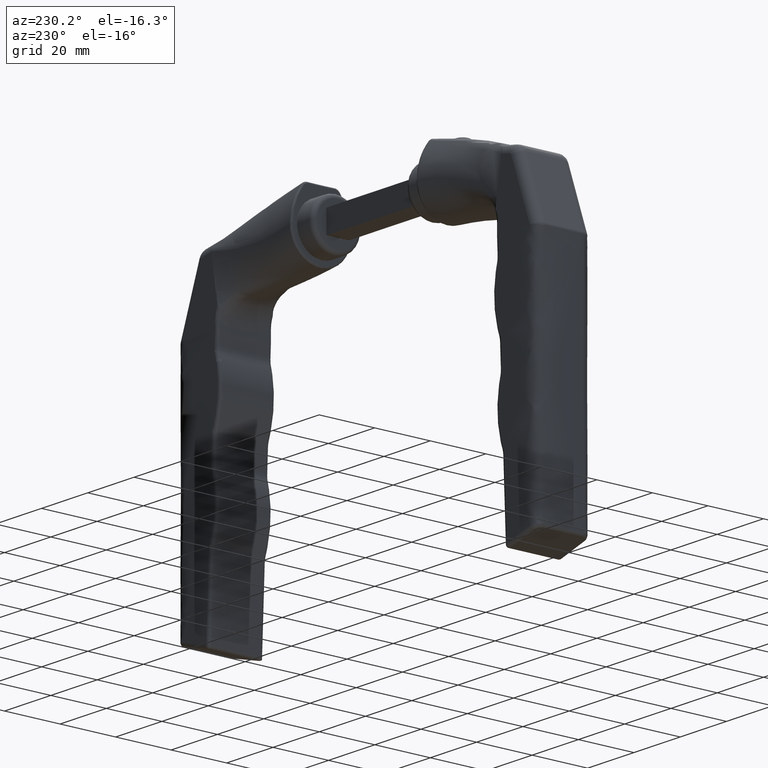
[diagram: clean part render]
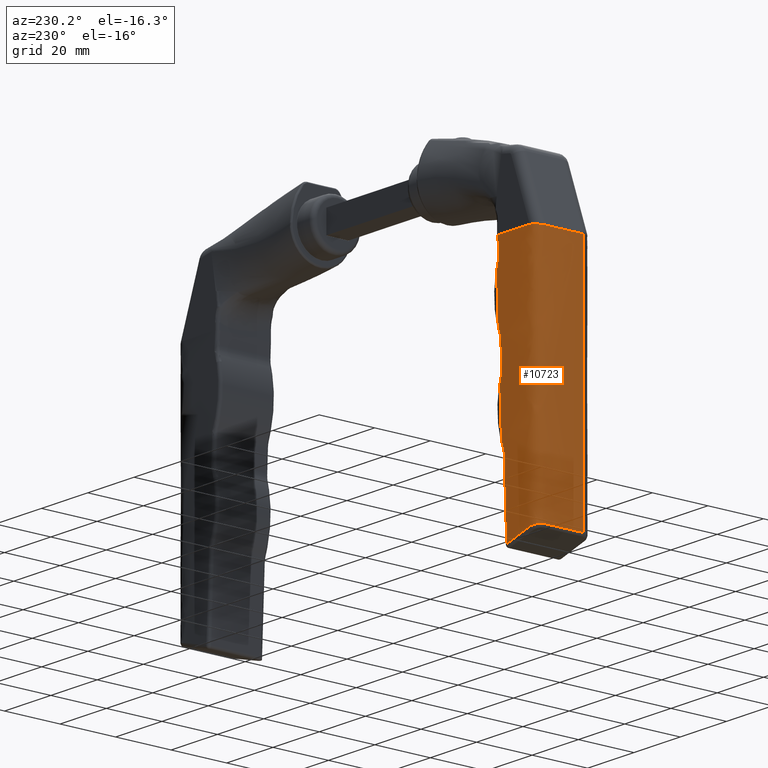
[diagram: same view with one face highlighted and labeled with its STEP entity id]
A machine part, auxiliary view. The second image highlights one B-rep face of the part: STEP entity #10723.
In plain terms, the highlighted face is a freeform B-spline surface patch.
Its self-contained STEP definition (entity closure, byte-faithful):
#275 = CARTESIAN_POINT ( 'NONE',  ( -110.5375847758303962, -9.900000000000051870, -47.04482039995603770 ) ) ;
#323 = EDGE_CURVE ( 'NONE', #3808, #2482, #6611, .T. ) ;
#343 = CARTESIAN_POINT ( 'NONE',  ( -110.1206761756391472, -9.826618143381764980, -48.75416021638946518 ) ) ;
#387 = DIRECTION ( 'NONE',  ( -0.9991023873423596768, 0.000000000000000000, -0.04236059025553733093 ) ) ;
#389 = B_SPLINE_SURFACE_WITH_KNOTS ( 'NONE', 3, 1, ( 
 ( #7105, #14452 ),
 ( #7151, #8337 ),
 ( #8277, #15587 ),
 ( #3491, #12021 ),
 ( #1141, #8395 ),
 ( #1088, #14286 ),
 ( #9579, #1035 ),
 ( #8225, #5847 ),
 ( #13161, #10743 ),
 ( #9423, #3536 ),
 ( #12074, #4771 ),
 ( #14503, #8448 ),
 ( #7054, #2145 ),
 ( #10630, #3374 ),
 ( #15525, #985 ),
 ( #9477, #2198 ),
 ( #3435, #11964 ) ),
 .UNSPECIFIED., .F., .F., .F.,
 ( 4, 1, 1, 1, 2, 1, 1, 1, 2, 1, 1, 1, 4 ),
 ( 2, 2 ),
 ( 0.000000000000000000, 0.1016543106499572663, 0.2033086212999145326, 0.3049629319498717850, 0.4066172425998290652, 0.4448072733632542075, 0.4829973041266792388, 0.5211873348901043812, 0.5593773656535294680, 0.6695330242401470455, 0.7796886828267647340, 0.8898443414133825335, 1.000000000000000000 ),
 ( 0.000000000000000000, 1.000000000000000000 ),
 .UNSPECIFIED. ) ;
#400 = CARTESIAN_POINT ( 'NONE',  ( -109.7177995408222415, -7.789652459436074317, -50.87106400424470820 ) ) ;
#499 = FACE_OUTER_BOUND ( 'NONE', #12058, .T. ) ;
#501 = CARTESIAN_POINT ( 'NONE',  ( -109.7298328815726052, -7.974447450912835578, -50.80721475684600819 ) ) ;
#521 = B_SPLINE_CURVE_WITH_KNOTS ( 'NONE', 3,
 ( #13155, #15581, #10909, #1080 ),
 .UNSPECIFIED., .F., .F.,
 ( 4, 4 ),
 ( 0.000000000000000000, 0.003407895719440078887 ),
 .UNSPECIFIED. ) ;
#586 = ORIENTED_EDGE ( 'NONE', *, *, #12293, .T. ) ;
#742 = B_SPLINE_CURVE_WITH_KNOTS ( 'NONE', 3,
 ( #5198, #1552, #1355, #8655, #6358, #12466, #11079, #2673, #6309, #2624, #5033, #12378, #11179, #13543, #13592, #13641, #3911, #14747 ),
 .UNSPECIFIED., .F., .F.,
 ( 4, 2, 2, 2, 2, 2, 2, 2, 4 ),
 ( -5.999999998749629279E-08, 0.0003029937331418587360, 0.0006060474662837049727, 0.001212154932567395278, 0.002424369865134788898, 0.003030477331418495249, 0.003636584797702201166, 0.004242692263985907083, 0.004848799730269613001 ),
 .UNSPECIFIED. ) ;
#783 = VECTOR ( 'NONE', #387, 1000.000000000000114 ) ;
#813 = CARTESIAN_POINT ( 'NONE',  ( -23.60204615867909794, 3.296402247660026319, -51.00000000000002842 ) ) ;
#836 = CARTESIAN_POINT ( 'NONE',  ( -113.1374330987865875, -9.900000000000048317, -37.94535126960929716 ) ) ;
#944 = CARTESIAN_POINT ( 'NONE',  ( -112.1379493848213258, -9.900000000000048317, -41.44354426848774864 ) ) ;
#971 = VECTOR ( 'NONE', #1627, 1000.000000000000000 ) ;
#985 = CARTESIAN_POINT ( 'NONE',  ( -23.24939219726218198, 3.295195981485862458, -51.00000000000002842 ) ) ;
#1035 = CARTESIAN_POINT ( 'NONE',  ( -23.24939219726221040, -9.900000000000050093, -48.25212406856840630 ) ) ;
#1056 = CARTESIAN_POINT ( 'NONE',  ( -110.2671978388802501, -9.900000000000051870, -47.99117467928152792 ) ) ;
#1080 = CARTESIAN_POINT ( 'NONE',  ( -66.52883967307947444, -9.900000000000050093, -34.96831151254765757 ) ) ;
#1084 = VECTOR ( 'NONE', #9270, 1000.000000000000114 ) ;
#1088 = CARTESIAN_POINT ( 'NONE',  ( -114.4475491600007757, -9.900000000000050093, -47.04820837801869260 ) ) ;
#1141 = CARTESIAN_POINT ( 'NONE',  ( -114.4475491600008894, -9.900000000000048317, -45.21886523665086344 ) ) ;
#1186 = CARTESIAN_POINT ( 'NONE',  ( -84.83032674674937823, -9.900000000000053646, -36.35554430320302544 ) ) ;
#1289 = CARTESIAN_POINT ( 'NONE',  ( -53.09895704642706704, -9.900000000000050093, -34.39890264881662318 ) ) ;
#1295 = VERTEX_POINT ( 'NONE', #5214 ) ;
#1355 = CARTESIAN_POINT ( 'NONE',  ( -23.60136728808289064, -7.104047871814411330, -50.99437887827696869 ) ) ;
#1460 = VERTEX_POINT ( 'NONE', #10252 ) ;
#1519 = CARTESIAN_POINT ( 'NONE',  ( -49.66907441977465254, -9.900000000000050093, -34.25348026327043272 ) ) ;
#1552 = CARTESIAN_POINT ( 'NONE',  ( -23.60204610286707450, -7.001018803402014434, -51.00000000000000000 ) ) ;
#1617 = CARTESIAN_POINT ( 'NONE',  ( -109.6954364955716557, -7.224422660485736003, -50.98840052303821579 ) ) ;
#1627 = DIRECTION ( 'NONE',  ( 1.941853346959463414E-16, 0.000000000000000000, 1.000000000000000000 ) ) ;
#1657 = CARTESIAN_POINT ( 'NONE',  ( -88.07693019043864524, -9.900000000000051870, -36.88281983264403152 ) ) ;
#1840 = B_SPLINE_CURVE_WITH_KNOTS ( 'NONE', 3,
 ( #14111, #3194, #813, #9307, #14268, #2020, #3257 ),
 .UNSPECIFIED., .F., .F.,
 ( 4, 1, 1, 1, 4 ),
 ( 7.806255641895561051E-18, 0.003450000223087217478, 0.006900000446174437557, 0.01035000066926165460, 0.01380000089234886644 ),
 .UNSPECIFIED. ) ;
#1963 = EDGE_CURVE ( 'NONE', #6618, #14991, #12732, .T. ) ;
#2020 = CARTESIAN_POINT ( 'NONE',  ( -23.60204615867913347, -5.745059925753540853, -51.00000000000001421 ) ) ;
#2033 = CARTESIAN_POINT ( 'NONE',  ( -109.6932477472464171, 6.900000000000049205, -50.99999999999999289 ) ) ;
#2145 = CARTESIAN_POINT ( 'NONE',  ( -23.24939219726218198, -3.478915452503912764, -50.99999999999999289 ) ) ;
#2198 = CARTESIAN_POINT ( 'NONE',  ( -23.24939219726221040, 5.665958219195332823, -51.00000000000000711 ) ) ;
#2482 = VERTEX_POINT ( 'NONE', #9131 ) ;
#2501 = ORIENTED_EDGE ( 'NONE', *, *, #5000, .T. ) ;
#2624 = CARTESIAN_POINT ( 'NONE',  ( -23.48147852206047403, -9.190655074178501138, -49.87967267683565353 ) ) ;
#2673 = CARTESIAN_POINT ( 'NONE',  ( -23.55795623615291845, -8.450675186923884752, -50.57390976704785857 ) ) ;
#2890 = CARTESIAN_POINT ( 'NONE',  ( -97.16218622107157898, -9.900000000000051870, -37.26802240342761507 ) ) ;
#2951 = CARTESIAN_POINT ( 'NONE',  ( -109.8208265937353616, -8.797871677128620505, -50.32891890929804646 ) ) ;
#3102 = CARTESIAN_POINT ( 'NONE',  ( -109.6932477472464456, -6.355156734214756575, -50.99999999999997868 ) ) ;
#3125 = CARTESIAN_POINT ( 'NONE',  ( -23.60204615867922939, -6.900000000000059863, -51.00000000000000711 ) ) ;
#3194 = CARTESIAN_POINT ( 'NONE',  ( -23.60204615867912636, 5.666573960363149531, -51.00000000000000711 ) ) ;
#3196 = EDGE_CURVE ( 'NONE', #1295, #12546, #4672, .T. ) ;
#3257 = CARTESIAN_POINT ( 'NONE',  ( -23.60204615867922939, -6.900000000000059863, -51.00000000000000711 ) ) ;
#3282 = CARTESIAN_POINT ( 'NONE',  ( -49.66907441977465254, -9.900000000000050093, -34.25348026327043272 ) ) ;
#3374 = CARTESIAN_POINT ( 'NONE',  ( -23.24939219726225303, -0.1161706104272915846, -50.99999999999999289 ) ) ;
#3435 = CARTESIAN_POINT ( 'NONE',  ( -114.4475491600007757, 6.900000000000049205, -50.99999999999999289 ) ) ;
#3450 = CARTESIAN_POINT ( 'NONE',  ( -111.4053597104283426, -9.900000000000051870, -44.00760812886327500 ) ) ;
#3491 = CARTESIAN_POINT ( 'NONE',  ( -114.4475491600006052, -9.900000000000044764, -42.55575537007972997 ) ) ;
#3519 = CARTESIAN_POINT ( 'NONE',  ( -25.24759697194702568, -9.900000000000050093, -34.21894106084287301 ) ) ;
#3536 = CARTESIAN_POINT ( 'NONE',  ( -23.24939219726215001, -8.087800873490685660, -50.82787654899865970 ) ) ;
#3658 = ORIENTED_EDGE ( 'NONE', *, *, #5842, .T. ) ;
#3678 = ORIENTED_EDGE ( 'NONE', *, *, #4032, .T. ) ;
#3700 = CARTESIAN_POINT ( 'NONE',  ( -110.4023995156254330, -9.900000000000051870, -47.51796881067323852 ) ) ;
#3798 = B_SPLINE_CURVE_WITH_KNOTS ( 'NONE', 3,
 ( #10135, #6476, #343, #11469, #14953, #7696, #2951, #7845, #7795, #501, #400, #8912, #1617, #5374, #13859, #12784, #3102, #14002, #11796, #7893, #5516, #2033 ),
 .UNSPECIFIED., .F., .F.,
 ( 4, 2, 2, 2, 2, 2, 2, 2, 1, 1, 1, 1, 4 ),
 ( -5.999999993201480095E-08, 0.001160413388656946149, 0.002320886777313824288, 0.002901123471642266284, 0.003481360165970708714, 0.004061596860299151145, 0.004641833554627593575, 0.004931951901791813489, 0.005222070248956034270, 0.005802306943284474099, 0.006962780331941358092, 0.009283727109255122609, 0.01856751421851017547 ),
 .UNSPECIFIED. ) ;
#3808 = VERTEX_POINT ( 'NONE', #8628 ) ;
#3868 = CARTESIAN_POINT ( 'NONE',  ( -83.75801937480308368, -9.900000000131422340, -35.97607947098462233 ) ) ;
#3911 = CARTESIAN_POINT ( 'NONE',  ( -23.27505316389638068, -9.900000000000057199, -48.00786822846576030 ) ) ;
#3925 = CARTESIAN_POINT ( 'NONE',  ( -110.6727700360353168, -9.900000000000051870, -46.57167198923880846 ) ) ;
#4032 = EDGE_CURVE ( 'NONE', #10955, #4095, #3798, .T. ) ;
#4095 = VERTEX_POINT ( 'NONE', #9116 ) ;
#4102 = CARTESIAN_POINT ( 'NONE',  ( -110.2672142554205124, -9.900000000000051870, -47.99111722139046066 ) ) ;
#4108 = CARTESIAN_POINT ( 'NONE',  ( -113.1374330987865875, -9.900000000000048317, -37.94535126960929716 ) ) ;
#4111 = EDGE_CURVE ( 'NONE', #12931, #1295, #9673, .T. ) ;
#4136 = DIRECTION ( 'NONE',  ( -1.000000000000000000, 5.706442543632500772E-17, 7.608590058176622501E-17 ) ) ;
#4369 = ORIENTED_EDGE ( 'NONE', *, *, #4648, .T. ) ;
#4392 = CARTESIAN_POINT ( 'NONE',  ( -113.0484684189291471, -9.900000000000048317, -38.25672764911022483 ) ) ;
#4405 = CARTESIAN_POINT ( 'NONE',  ( -23.24939219726221040, -9.900000000000050093, -47.80746668257226872 ) ) ;
#4567 = ORIENTED_EDGE ( 'NONE', *, *, #3196, .T. ) ;
#4648 = EDGE_CURVE ( 'NONE', #5396, #13561, #1840, .T. ) ;
#4672 = LINE ( 'NONE', #1289, #783 ) ;
#4721 = CARTESIAN_POINT ( 'NONE',  ( -59.78157360593273495, -9.900000000000051870, -35.68313497391904576 ) ) ;
#4771 = CARTESIAN_POINT ( 'NONE',  ( -23.24939219726221040, -7.300421756574583476, -51.00000000000000711 ) ) ;
#4915 = CARTESIAN_POINT ( 'NONE',  ( -23.24939219726220685, -9.900000000000050093, -34.13421988033179844 ) ) ;
#4945 = CARTESIAN_POINT ( 'NONE',  ( -56.33161930641043114, -9.900000000000050093, -35.53686157658371769 ) ) ;
#4968 = CARTESIAN_POINT ( 'NONE',  ( -26.90890728311631008, -9.900000000000050093, -34.28937837164336599 ) ) ;
#5000 = EDGE_CURVE ( 'NONE', #9469, #10681, #6136, .T. ) ;
#5033 = CARTESIAN_POINT ( 'NONE',  ( -23.46325970833784780, -9.312954747012534895, -49.71583867257253075 ) ) ;
#5038 = CARTESIAN_POINT ( 'NONE',  ( -82.66907441977470228, -9.900000000000050093, -35.65263564128049012 ) ) ;
#5121 = CARTESIAN_POINT ( 'NONE',  ( -23.60204615867921163, 6.900000000000043876, -50.99999999999999289 ) ) ;
#5198 = CARTESIAN_POINT ( 'NONE',  ( -23.60204615867922939, -6.900000000000059863, -51.00000000000000711 ) ) ;
#5213 = CARTESIAN_POINT ( 'NONE',  ( -52.88166500688814153, -9.900000000000046541, -35.39058817924841094 ) ) ;
#5214 = CARTESIAN_POINT ( 'NONE',  ( -33.52883967307928259, -9.900000000000050093, -33.56915613453760727 ) ) ;
#5374 = CARTESIAN_POINT ( 'NONE',  ( -109.6929919969666969, -6.935850150136045222, -51.00134797548898291 ) ) ;
#5396 = VERTEX_POINT ( 'NONE', #5121 ) ;
#5403 = CARTESIAN_POINT ( 'NONE',  ( -110.2671978388802501, -9.900000000000051870, -47.99117467928152792 ) ) ;
#5516 = CARTESIAN_POINT ( 'NONE',  ( -109.6932477472463745, 3.803904996387826198, -51.00000000000000711 ) ) ;
#5531 = CARTESIAN_POINT ( 'NONE',  ( -112.9595037390717778, -9.900000000000048317, -38.56810402861123066 ) ) ;
#5842 = EDGE_CURVE ( 'NONE', #13572, #3808, #521, .T. ) ;
#5847 = CARTESIAN_POINT ( 'NONE',  ( -23.24939219726210382, -9.727432708186322330, -49.09679476265323217 ) ) ;
#5909 = B_SPLINE_CURVE_WITH_KNOTS ( 'NONE', 3,
 ( #5038, #3868, #1186, #9690 ),
 .UNSPECIFIED., .F., .F.,
 ( 4, 4 ),
 ( -5.999999999723631142E-08, 0.003407835719427049735 ),
 .UNSPECIFIED. ) ;
#6007 = EDGE_CURVE ( 'NONE', #13561, #9469, #742, .T. ) ;
#6136 = LINE ( 'NONE', #10002, #971 ) ;
#6143 = CARTESIAN_POINT ( 'NONE',  ( -24.58152871371875037, -9.900000000000050093, -34.19070066733917912 ) ) ;
#6309 = CARTESIAN_POINT ( 'NONE',  ( -23.53025240189344203, -8.784097782544142419, -50.32633107086166291 ) ) ;
#6358 = CARTESIAN_POINT ( 'NONE',  ( -23.59713171333054760, -7.404943182562076842, -50.95614028934090811 ) ) ;
#6476 = CARTESIAN_POINT ( 'NONE',  ( -110.1947925001927757, -9.899996240792223290, -48.37116235276868537 ) ) ;
#6524 = CARTESIAN_POINT ( 'NONE',  ( -51.83032674674947771, -9.900000000000048317, -34.95638892519303198 ) ) ;
#6548 = CARTESIAN_POINT ( 'NONE',  ( -110.2672015673015551, -9.900000000000051870, -47.99115511229711473 ) ) ;
#6611 = LINE ( 'NONE', #12951, #1084 ) ;
#6618 = VERTEX_POINT ( 'NONE', #6743 ) ;
#6682 = CARTESIAN_POINT ( 'NONE',  ( -33.52883967307928259, -9.900000000000050093, -33.56915613453760727 ) ) ;
#6743 = CARTESIAN_POINT ( 'NONE',  ( -85.88166500688802785, -9.900000000000050093, -36.78974355725846124 ) ) ;
#6885 = CARTESIAN_POINT ( 'NONE',  ( -32.41642482019492633, -9.899999999967205255, -33.79926528502427630 ) ) ;
#7054 = CARTESIAN_POINT ( 'NONE',  ( -114.4475491600008752, -3.418371935848021348, -50.99999999999999289 ) ) ;
#7105 = CARTESIAN_POINT ( 'NONE',  ( -114.4475491600007757, -9.900000000000050093, -36.99999999999997868 ) ) ;
#7144 = B_SPLINE_CURVE_WITH_KNOTS ( 'NONE', 3,
 ( #4915, #13413, #6143, #3519, #4968, #7341, #8425 ),
 .UNSPECIFIED., .F., .F.,
 ( 4, 3, 4 ),
 ( 0.000000000000000000, 0.002000000000000003511, 0.006988408592201670287 ),
 .UNSPECIFIED. ) ;
#7151 = CARTESIAN_POINT ( 'NONE',  ( -114.4475491600007757, -9.900000000000048317, -37.99185876897320924 ) ) ;
#7341 = CARTESIAN_POINT ( 'NONE',  ( -28.57021759428557672, -9.900000000000051870, -34.35981568244380924 ) ) ;
#7395 = ORIENTED_EDGE ( 'NONE', *, *, #1963, .T. ) ;
#7696 = CARTESIAN_POINT ( 'NONE',  ( -109.8451959188923297, -8.944534718416814911, -50.20144306100810638 ) ) ;
#7795 = CARTESIAN_POINT ( 'NONE',  ( -109.7598322127077353, -8.321393430045935347, -50.64777032015182101 ) ) ;
#7845 = CARTESIAN_POINT ( 'NONE',  ( -109.7781374045113267, -8.486000455271046405, -50.55198487214871506 ) ) ;
#7893 = CARTESIAN_POINT ( 'NONE',  ( -109.6932477472464171, -0.06621375812743252043, -50.99999999999998579 ) ) ;
#8225 = CARTESIAN_POINT ( 'NONE',  ( -114.4475491600006478, -9.770417567124740188, -49.10214833489771991 ) ) ;
#8277 = CARTESIAN_POINT ( 'NONE',  ( -114.4475491600008610, -9.900000000000051870, -39.87034056241910207 ) ) ;
#8337 = CARTESIAN_POINT ( 'NONE',  ( -23.24939219726220685, -9.900000000000048317, -34.27212511554801466 ) ) ;
#8395 = CARTESIAN_POINT ( 'NONE',  ( -23.24939219726219619, -9.900000000000048317, -44.17715399985430480 ) ) ;
#8425 = CARTESIAN_POINT ( 'NONE',  ( -30.23152790545485047, -9.900000000000050093, -34.43025299324433064 ) ) ;
#8433 = ORIENTED_EDGE ( 'NONE', *, *, #12568, .T. ) ;
#8448 = CARTESIAN_POINT ( 'NONE',  ( -23.24939219726221040, -5.745023464630619969, -51.00000000000000711 ) ) ;
#8628 = CARTESIAN_POINT ( 'NONE',  ( -66.52883967307947444, -9.900000000000050093, -34.96831151254765757 ) ) ;
#8638 = CARTESIAN_POINT ( 'NONE',  ( -68.84847067863144332, 6.900000000000046541, -50.99999999999999289 ) ) ;
#8655 = CARTESIAN_POINT ( 'NONE',  ( -23.59890950056086467, -7.305263209455196360, -50.97244962394807999 ) ) ;
#8858 = CARTESIAN_POINT ( 'NONE',  ( -50.75801937480308368, -9.900000000000050093, -34.57692409297457914 ) ) ;
#8912 = CARTESIAN_POINT ( 'NONE',  ( -109.7005881978664235, -7.414408977426202085, -50.96138782170796588 ) ) ;
#8954 = CARTESIAN_POINT ( 'NONE',  ( -85.88166500688802785, -9.900000000000050093, -36.78974355725846124 ) ) ;
#9045 = ORIENTED_EDGE ( 'NONE', *, *, #6007, .T. ) ;
#9116 = CARTESIAN_POINT ( 'NONE',  ( -109.6932477472464171, 6.900000000000049205, -50.99999999999999289 ) ) ;
#9131 = CARTESIAN_POINT ( 'NONE',  ( -82.66907441977470228, -9.900000000000050093, -35.65263564128049012 ) ) ;
#9270 = DIRECTION ( 'NONE',  ( -0.9991023873423596768, 0.000000000000000000, -0.04236059025553731705 ) ) ;
#9307 = CARTESIAN_POINT ( 'NONE',  ( -23.60204615867916544, -0.1152303532992041413, -50.99999999999999289 ) ) ;
#9366 = ORIENTED_EDGE ( 'NONE', *, *, #323, .T. ) ;
#9423 = CARTESIAN_POINT ( 'NONE',  ( -114.4475491600007757, -8.107891267634155241, -50.83857104059332244 ) ) ;
#9466 = B_SPLINE_CURVE_WITH_KNOTS ( 'NONE', 3,
 ( #12238, #4945, #4721, #15662 ),
 .UNSPECIFIED., .F., .F.,
 ( 4, 4 ),
 ( 0.02965889500919759864, 0.04001805642217125258 ),
 .UNSPECIFIED. ) ;
#9469 = VERTEX_POINT ( 'NONE', #4405 ) ;
#9477 = CARTESIAN_POINT ( 'NONE',  ( -114.4475491600007757, 5.825192102306580466, -50.99999999999999289 ) ) ;
#9579 = CARTESIAN_POINT ( 'NONE',  ( -114.4475491600007757, -9.900000000000053646, -48.35757412405748568 ) ) ;
#9673 = B_SPLINE_CURVE_WITH_KNOTS ( 'NONE', 3,
 ( #10511, #10338, #6885, #6682 ),
 .UNSPECIFIED., .F., .F.,
 ( 4, 4 ),
 ( 0.000000000000000000, 0.003407895719427095783 ),
 .UNSPECIFIED. ) ;
#9690 = CARTESIAN_POINT ( 'NONE',  ( -85.88166500688802785, -9.900000000000050093, -36.78974355725846124 ) ) ;
#9811 = LINE ( 'NONE', #8638, #14952 ) ;
#10002 = CARTESIAN_POINT ( 'NONE',  ( -23.24939219726221040, -9.900000000000050093, -51.00000000000000711 ) ) ;
#10124 = CARTESIAN_POINT ( 'NONE',  ( -89.17456278221396815, -9.900000000000051870, -36.92935797033680956 ) ) ;
#10135 = CARTESIAN_POINT ( 'NONE',  ( -110.2671978388802501, -9.900000000000051870, -47.99117467928152792 ) ) ;
#10252 = CARTESIAN_POINT ( 'NONE',  ( -52.88166500688814153, -9.900000000000046541, -35.39058817924841094 ) ) ;
#10338 = CARTESIAN_POINT ( 'NONE',  ( -31.31584593553380458, -9.900000000000050093, -34.08660267809916178 ) ) ;
#10511 = CARTESIAN_POINT ( 'NONE',  ( -30.23152790545485047, -9.900000000000050093, -34.43025299324433064 ) ) ;
#10630 = CARTESIAN_POINT ( 'NONE',  ( -114.4475491600006620, 0.1269847955353168856, -50.99999999999999289 ) ) ;
#10681 = VERTEX_POINT ( 'NONE', #13210 ) ;
#10723 = ADVANCED_FACE ( 'NONE', ( #499 ), #389, .T. ) ;
#10743 = CARTESIAN_POINT ( 'NONE',  ( -23.24939219726230988, -9.065983416563780040, -50.12918008426304795 ) ) ;
#10835 = EDGE_CURVE ( 'NONE', #2482, #6618, #5909, .T. ) ;
#10909 = CARTESIAN_POINT ( 'NONE',  ( -65.41642482020384364, -9.900000000000050093, -35.19842066303373684 ) ) ;
#10955 = VERTEX_POINT ( 'NONE', #1056 ) ;
#11079 = CARTESIAN_POINT ( 'NONE',  ( -23.58392534733766865, -7.897120587603672526, -50.82617577846417589 ) ) ;
#11179 = CARTESIAN_POINT ( 'NONE',  ( -23.40350264648930434, -9.611597953804640326, -49.18834610909330962 ) ) ;
#11404 = CARTESIAN_POINT ( 'NONE',  ( -105.1498096599290335, -9.900000000000050093, -37.60668683651840638 ) ) ;
#11469 = CARTESIAN_POINT ( 'NONE',  ( -109.9872268196667591, -9.546576833733235290, -49.45732937848895006 ) ) ;
#11796 = CARTESIAN_POINT ( 'NONE',  ( -109.6932477472464456, -4.323344388094235491, -51.00000000000000000 ) ) ;
#11964 = CARTESIAN_POINT ( 'NONE',  ( -23.24939219726221040, 6.900000000000035882, -51.00000000000000711 ) ) ;
#12021 = CARTESIAN_POINT ( 'NONE',  ( -23.24939219726222106, -9.900000000000041211, -40.38621368482565543 ) ) ;
#12058 = EDGE_LOOP ( 'NONE', ( #2501, #586, #12388, #4567, #13118, #15638, #3658, #9366, #15426, #7395, #8433, #3678, #14834, #4369, #9045 ) ) ;
#12074 = CARTESIAN_POINT ( 'NONE',  ( -114.4475491600007615, -7.297151580632906587, -50.99999999999997868 ) ) ;
#12109 = EDGE_CURVE ( 'NONE', #1460, #13572, #9466, .T. ) ;
#12238 = CARTESIAN_POINT ( 'NONE',  ( -52.88166500688814153, -9.900000000000046541, -35.39058817924841094 ) ) ;
#12293 = EDGE_CURVE ( 'NONE', #10681, #12931, #7144, .T. ) ;
#12378 = CARTESIAN_POINT ( 'NONE',  ( -23.42429652492221592, -9.523522521927764828, -49.36960043840677770 ) ) ;
#12388 = ORIENTED_EDGE ( 'NONE', *, *, #4111, .T. ) ;
#12466 = CARTESIAN_POINT ( 'NONE',  ( -23.59033973185711019, -7.701240246542047529, -50.89139265847218496 ) ) ;
#12546 = VERTEX_POINT ( 'NONE', #3282 ) ;
#12568 = EDGE_CURVE ( 'NONE', #14991, #10955, #14382, .T. ) ;
#12732 = B_SPLINE_CURVE_WITH_KNOTS ( 'NONE', 3,
 ( #8954, #15187, #1657, #10124, #2890, #11404, #4108 ),
 .UNSPECIFIED., .F., .F.,
 ( 4, 3, 4 ),
 ( 0.06268854283916699965, 0.06598439901671566965, 0.08996879803343124649 ),
 .UNSPECIFIED. ) ;
#12784 = CARTESIAN_POINT ( 'NONE',  ( -109.6932477472464313, -6.645415640803400414, -50.99999999999997158 ) ) ;
#12861 = CARTESIAN_POINT ( 'NONE',  ( -63.23152790545502455, -9.900000000000051870, -35.82940837125442357 ) ) ;
#12931 = VERTEX_POINT ( 'NONE', #13240 ) ;
#12951 = CARTESIAN_POINT ( 'NONE',  ( -86.09895704642707415, -9.900000000000050093, -35.79805802682665927 ) ) ;
#13118 = ORIENTED_EDGE ( 'NONE', *, *, #13778, .T. ) ;
#13155 = CARTESIAN_POINT ( 'NONE',  ( -63.23152790545502455, -9.900000000000051870, -35.82940837125442357 ) ) ;
#13161 = CARTESIAN_POINT ( 'NONE',  ( -114.4475491600009036, -9.131850575707620266, -50.12633302513025058 ) ) ;
#13210 = CARTESIAN_POINT ( 'NONE',  ( -23.24939219726220685, -9.900000000000050093, -34.13421988033179844 ) ) ;
#13219 = EDGE_CURVE ( 'NONE', #5396, #4095, #9811, .T. ) ;
#13240 = CARTESIAN_POINT ( 'NONE',  ( -30.23152790545485047, -9.900000000000050093, -34.43025299324433064 ) ) ;
#13413 = CARTESIAN_POINT ( 'NONE',  ( -23.91546045549048571, -9.900000000000050093, -34.16246027383549233 ) ) ;
#13543 = CARTESIAN_POINT ( 'NONE',  ( -23.36175643790869216, -9.754774647914302932, -48.80998590317662433 ) ) ;
#13561 = VERTEX_POINT ( 'NONE', #3125 ) ;
#13572 = VERTEX_POINT ( 'NONE', #12861 ) ;
#13592 = CARTESIAN_POINT ( 'NONE',  ( -23.34113613495233253, -9.809468754416803549, -48.61286781653654288 ) ) ;
#13641 = CARTESIAN_POINT ( 'NONE',  ( -23.29798467394853034, -9.882022713234540845, -48.21291527890511475 ) ) ;
#13778 = EDGE_CURVE ( 'NONE', #12546, #1460, #15692, .T. ) ;
#13859 = CARTESIAN_POINT ( 'NONE',  ( -109.6932477472464456, -6.838921578529163270, -50.99999999999998579 ) ) ;
#13899 = CARTESIAN_POINT ( 'NONE',  ( -110.2672087832404060, -9.900000000000051870, -47.99113637402081167 ) ) ;
#14002 = CARTESIAN_POINT ( 'NONE',  ( -109.6932477472464171, -5.677885952174576367, -50.99999999999998579 ) ) ;
#14018 = CARTESIAN_POINT ( 'NONE',  ( -112.8705390592143516, -9.900000000000048317, -38.87948040811221517 ) ) ;
#14111 = CARTESIAN_POINT ( 'NONE',  ( -23.60204615867921163, 6.900000000000043876, -50.99999999999999289 ) ) ;
#14268 = CARTESIAN_POINT ( 'NONE',  ( -23.60204615867909794, -3.478681336906650046, -50.99999999999999289 ) ) ;
#14286 = CARTESIAN_POINT ( 'NONE',  ( -23.24939219726221040, -9.900000000000050093, -46.62388020824016621 ) ) ;
#14382 = B_SPLINE_CURVE_WITH_KNOTS ( 'NONE', 3,
 ( #836, #4392, #5531, #14018, #944, #3450, #3925, #275, #3700, #4102, #13899, #6548, #5403 ),
 .UNSPECIFIED., .F., .F.,
 ( 4, 3, 3, 3, 4 ),
 ( 0.001028491031559966530, 0.001999999999999992235, 0.01000000000000000888, 0.01147624532455420419, 0.01147630508166290995 ),
 .UNSPECIFIED. ) ;
#14452 = CARTESIAN_POINT ( 'NONE',  ( -23.24939219726220685, -9.900000000000050093, -33.13332146124181321 ) ) ;
#14503 = CARTESIAN_POINT ( 'NONE',  ( -114.4475491600007757, -5.754452501518265706, -50.99999999999999289 ) ) ;
#14747 = CARTESIAN_POINT ( 'NONE',  ( -23.24939219726221040, -9.900000000000050093, -47.80746668257226872 ) ) ;
#14834 = ORIENTED_EDGE ( 'NONE', *, *, #13219, .F. ) ;
#14952 = VECTOR ( 'NONE', #4136, 1000.000000000000000 ) ;
#14953 = CARTESIAN_POINT ( 'NONE',  ( -109.9232509256951715, -9.337433534932737089, -49.78657391763098161 ) ) ;
#14991 = VERTEX_POINT ( 'NONE', #15467 ) ;
#15187 = CARTESIAN_POINT ( 'NONE',  ( -86.97929759866333654, -9.900000000000048317, -36.83628169495121796 ) ) ;
#15426 = ORIENTED_EDGE ( 'NONE', *, *, #10835, .T. ) ;
#15467 = CARTESIAN_POINT ( 'NONE',  ( -113.1374330987865875, -9.900000000000048317, -37.94535126960929716 ) ) ;
#15525 = CARTESIAN_POINT ( 'NONE',  ( -114.4475491600008610, 3.607142716603329191, -50.99999999999999289 ) ) ;
#15581 = CARTESIAN_POINT ( 'NONE',  ( -64.31584593553812113, -9.900000000000051870, -35.48575805610794021 ) ) ;
#15587 = CARTESIAN_POINT ( 'NONE',  ( -23.24939219726220330, -9.900000000000057199, -36.64074249179098786 ) ) ;
#15638 = ORIENTED_EDGE ( 'NONE', *, *, #12109, .T. ) ;
#15662 = CARTESIAN_POINT ( 'NONE',  ( -63.23152790545502455, -9.900000000000051870, -35.82940837125442357 ) ) ;
#15692 = B_SPLINE_CURVE_WITH_KNOTS ( 'NONE', 3,
 ( #1519, #8858, #6524, #5213 ),
 .UNSPECIFIED., .F., .F.,
 ( 4, 4 ),
 ( -5.999999999723631142E-08, 0.003407835719427201090 ),
 .UNSPECIFIED. ) ;